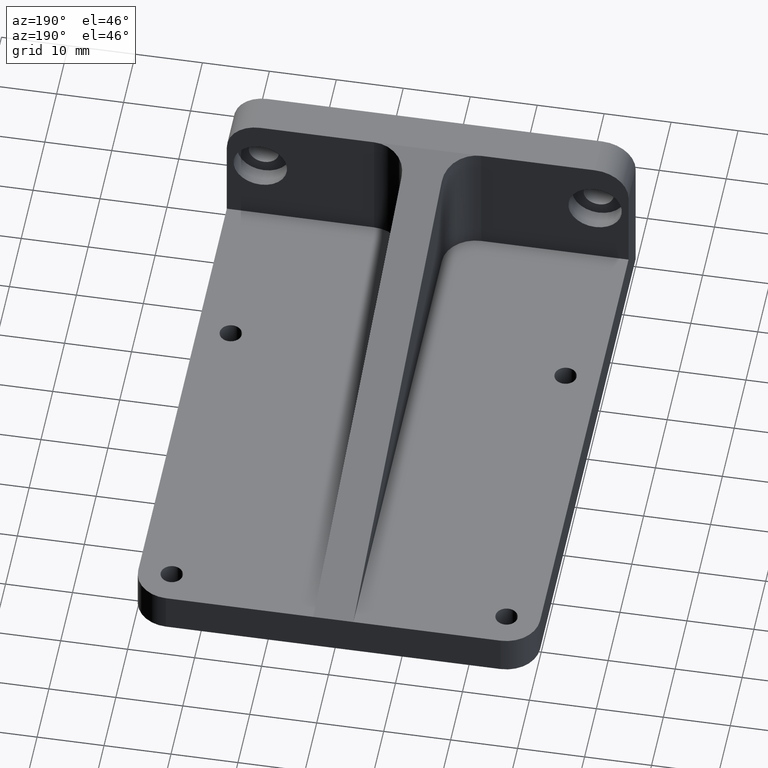
[diagram: clean part render]
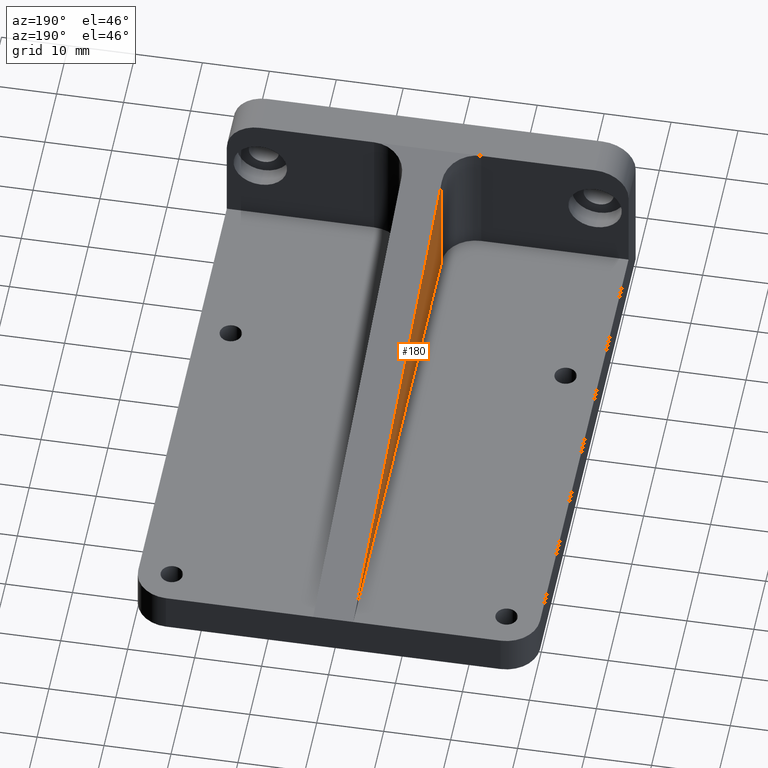
[diagram: same view with one face highlighted and labeled with its STEP entity id]
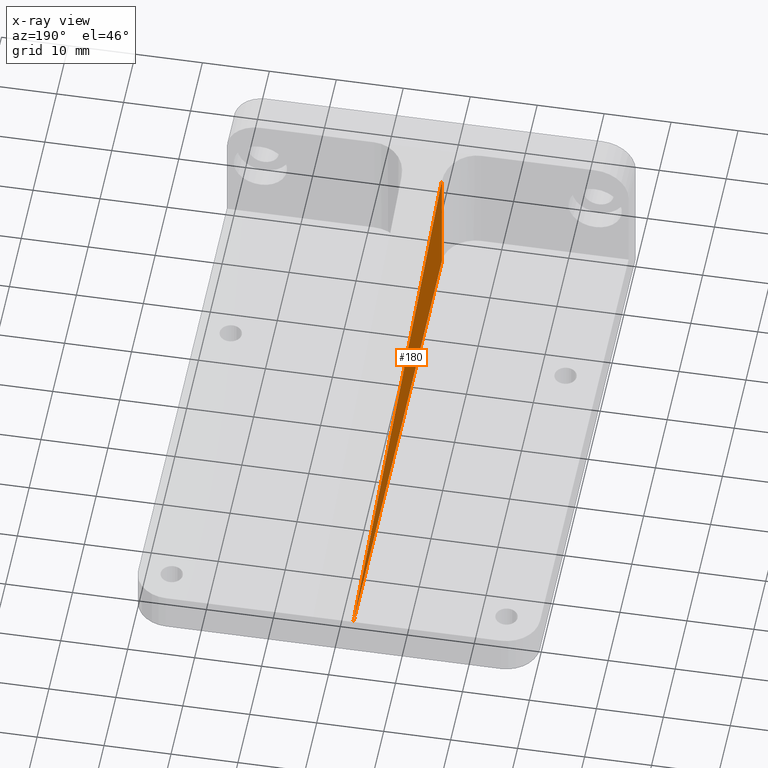
[diagram: x-ray of the same camera — body ghosted, the highlighted face saturated]
A machine part, auxiliary view. The second image highlights one B-rep face of the part: STEP entity #180.
The next image is the same camera in x-ray: the body ghosted, the highlighted face saturated — about 0% of this face is hidden behind the body in this view.
In plain terms, the highlighted planar face has unit normal (1, 0, 0).
Its self-contained STEP definition (entity closure, byte-faithful):
#41 = ORIENTED_EDGE ( 'NONE', *, *, #75, .T. ) ;
#60 = LINE ( 'NONE', #84, #178 ) ;
#67 = DIRECTION ( 'NONE',  ( 3.035766082959412415E-16, -1.000000000000000000, 0.0000000000000000000 ) ) ;
#75 = EDGE_CURVE ( 'NONE', #1121, #847, #673, .T. ) ;
#84 = CARTESIAN_POINT ( 'NONE',  ( -3.000000000000016431, 85.99999999999998579, 6.000000000000001776 ) ) ;
#178 = VECTOR ( 'NONE', #1012, 1000.000000000000114 ) ;
#180 = ADVANCED_FACE ( 'NONE', ( #1141 ), #1154, .F. ) ;
#277 = VECTOR ( 'NONE', #67, 1000.000000000000000 ) ;
#298 = DIRECTION ( 'NONE',  ( -3.035766082959412415E-16, 1.000000000000000000, 0.0000000000000000000 ) ) ;
#304 = CARTESIAN_POINT ( 'NONE',  ( -2.999999999999988898, 5.999999999999996447, -84.43340571124680594 ) ) ;
#422 = AXIS2_PLACEMENT_3D ( 'NONE', #304, #768, #298 ) ;
#494 = DIRECTION ( 'NONE',  ( -0.0000000000000000000, 0.0000000000000000000, 1.000000000000000000 ) ) ;
#625 = EDGE_CURVE ( 'NONE', #1127, #847, #60, .T. ) ;
#652 = CARTESIAN_POINT ( 'NONE',  ( -2.999999999999988898, 5.999999999999996447, 6.000000000000005329 ) ) ;
#672 = EDGE_CURVE ( 'NONE', #1127, #1121, #1227, .T. ) ;
#673 = LINE ( 'NONE', #850, #881 ) ;
#681 = CARTESIAN_POINT ( 'NONE',  ( -3.000000000000012879, 86.00000000000000000, 6.000000000000005329 ) ) ;
#768 = DIRECTION ( 'NONE',  ( 1.000000000000000000, 3.035766082959412415E-16, 0.0000000000000000000 ) ) ;
#847 = VERTEX_POINT ( 'NONE', #1125 ) ;
#850 = CARTESIAN_POINT ( 'NONE',  ( -2.999999999999990674, 10.99999999999999822, 23.99999999999999289 ) ) ;
#881 = VECTOR ( 'NONE', #494, 1000.000000000000000 ) ;
#913 = ORIENTED_EDGE ( 'NONE', *, *, #672, .T. ) ;
#1012 = DIRECTION ( 'NONE',  ( 2.961723007765280201E-16, -0.9756097560975609539, 0.2195121951219512479 ) ) ;
#1028 = ORIENTED_EDGE ( 'NONE', *, *, #625, .F. ) ;
#1096 = EDGE_LOOP ( 'NONE', ( #913, #41, #1028 ) ) ;
#1121 = VERTEX_POINT ( 'NONE', #1145 ) ;
#1125 = CARTESIAN_POINT ( 'NONE',  ( -2.999999999999993339, 10.99999999999996803, 22.87500000000000711 ) ) ;
#1127 = VERTEX_POINT ( 'NONE', #681 ) ;
#1141 = FACE_OUTER_BOUND ( 'NONE', #1096, .T. ) ;
#1145 = CARTESIAN_POINT ( 'NONE',  ( -2.999999999999990674, 10.99999999999999822, 6.000000000000005329 ) ) ;
#1154 = PLANE ( 'NONE',  #422 ) ;
#1227 = LINE ( 'NONE', #652, #277 ) ;